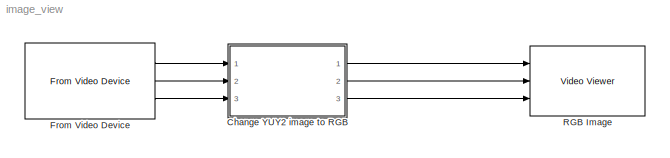
MODEL image_view
KIND model
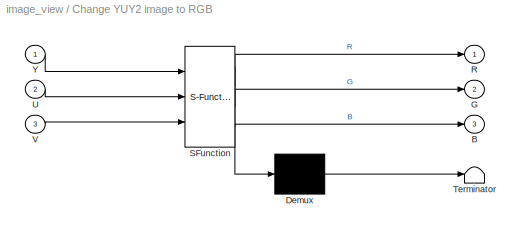
BLOCK [SubSystem] Change YUY2 image to RGB
  ErrorFcn = Stateflow.Translate.translate
  FunctionWithSeparateData = off
  MaskDescription = Embedded MATLAB block
  MaskDisplay = bgColor = Simulink.Root.ColorString2Rgb(get_param(gcbh, 'BackgroundColor')); image(imread('private/eml_membrane_16.png','png','BackgroundColor',bgColor(1:3)),'center'); disp([10 10 'YUY2toRGB']);
  MaskHideContents = off
  MaskIconFrame = on
  MaskIconOpaque = off
  MaskIconRotate = none
  MaskIconUnits = normalized
  MaskPortRotate = default
  MaskSelfModifiable = on
  MaskType = Stateflow
  MinAlgLoopOccurrences = off
  Opaque = off
  PermitHierarchicalResolution = ExplicitOnly
  Ports = [3, 3]
  PropExecContextOutsideSubsystem = off
  RTWSystemCode = Auto
  RequestExecContextInheritance = off
  SFBlockType = MATLAB Function
  SID = 1
  TreatAsAtomicUnit = on
BLOCK [Demux] Change YUY2 image to RGB/ Demux 
  Outputs = 1
  Ports = [1, 1]
  SID = 1::15
BLOCK [S-Function] Change YUY2 image to RGB/ SFunction 
  EnableBusSupport = on
  FunctionName = sf_sfun
  PortCounts = [3 4]
  Ports = [3, 4]
  SID = 1::14
  Tag = Stateflow S-Function image_view 1
BLOCK [Terminator] Change YUY2 image to RGB/ Terminator 
  SID = 1::17
BLOCK [Outport] Change YUY2 image to RGB/B
  IconDisplay = Port number
  Port = 3
  SID = 1::19
BLOCK [Outport] Change YUY2 image to RGB/G
  IconDisplay = Port number
  Port = 2
  SID = 1::18
BLOCK [Outport] Change YUY2 image to RGB/R
  IconDisplay = Port number
  SID = 1::5
BLOCK [Inport] Change YUY2 image to RGB/U
  IconDisplay = Port number
  Port = 2
  SID = 1::20
BLOCK [Inport] Change YUY2 image to RGB/V
  IconDisplay = Port number
  Port = 3
  SID = 1::21
BLOCK [Inport] Change YUY2 image to RGB/Y
  IconDisplay = Port number
  SID = 1::1
BLOCK [Reference] From Video Device  REF=imaqlib/From Video Device
  BlockHandle = 55.0015
  CanDoHWTrigger = no
  DataType = uint8
  DevXMLPath = C:\\Program Files<path>
  Device = winvideo 1 (Microsoft LifeCam HD-3000)
  DeviceMenu = winvideo 1 (Microsoft LifeCam HD-3000)
  EnableHWTrigger = off
  EngLibPath = C:\\Program Files<path>
  EngXMLPath = C:\\Program Files<path>
  ObjConstructor = videoinput('winvideo', 1)
  OutputPortsMode = Separate color signals
  Ports = [0, 3]
  ROIColumn = 0
  ROIHeight = 720
  ROIPosition = [0 0 720 1280]
  ROIRow = 0
  ROIWidth = 1280
  ReturnedColorSpace = YCbCr
  SID = 2
  SampleTime = 1/30
  SourceBlock = imaqlib/From Video Device
  SourceType = From Video Device
  TriggerConfiguration = none/none
  UserData = DataTag0
  UserDataPersistent = on
  VideoFormat = YUY2_1280x720
  VideoFormatMenu = YUY2_1280x720
  VideoSource = input1
BLOCK [Reference] RGB Image  REF=visionsinks/Video Viewer
  AxisZoom = on
  FigPos = [52 664 655 508]
  OpenAtMdlStart = on
  Ports = [3]
  SID = 3
  SourceBlock = visionsinks/Video Viewer
  SourceType = Video Viewer
  UserData = DataTag1
  UserDataPersistent = on
  colormapValue = gray(256)
  imagePorts = Separate color signals
  inputType = Obsolete7b
  maxInputVal = 255
  minInputVal = 0
  specRange = off
  trueSizedOnce = off
  useColorMap = off
LINE Change YUY2 image to RGB/ Demux :1 -> Change YUY2 image to RGB/ Terminator :1
LINE Change YUY2 image to RGB/ SFunction :1 -> Change YUY2 image to RGB/ Demux :1
LINE Change YUY2 image to RGB/ SFunction :2 -> Change YUY2 image to RGB/R:1
LINE Change YUY2 image to RGB/ SFunction :3 -> Change YUY2 image to RGB/G:1
LINE Change YUY2 image to RGB/ SFunction :4 -> Change YUY2 image to RGB/B:1
LINE Change YUY2 image to RGB/U:1 -> Change YUY2 image to RGB/ SFunction :2
LINE Change YUY2 image to RGB/V:1 -> Change YUY2 image to RGB/ SFunction :3
LINE Change YUY2 image to RGB/Y:1 -> Change YUY2 image to RGB/ SFunction :1
LINE Change YUY2 image to RGB:1 -> RGB Image:1
LINE Change YUY2 image to RGB:2 -> RGB Image:2
LINE Change YUY2 image to RGB:3 -> RGB Image:3
LINE From Video Device:1 -> Change YUY2 image to RGB:1
LINE From Video Device:2 -> Change YUY2 image to RGB:2
LINE From Video Device:3 -> Change YUY2 image to RGB:3
CHART Change YUY2 image to RGB states=1 transitions=1
  STATE_LABEL 'eML_blk_kernel()'
note: 3 file-system paths scrubbed to <path> (not preserved elsewhere — flat text is the only slx artifact)
